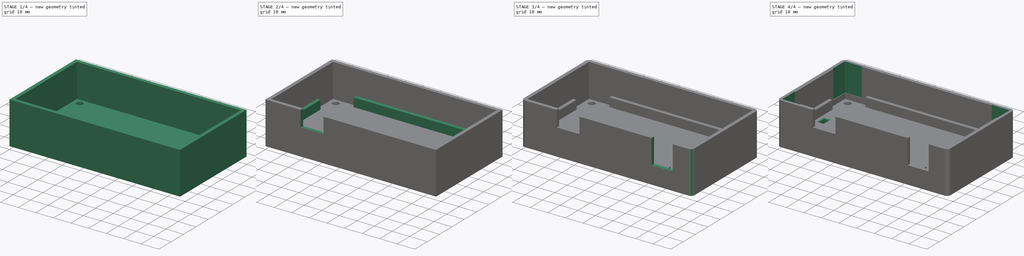
[diagram: build sequence overview — one tinted view per stage of 4, left to right]
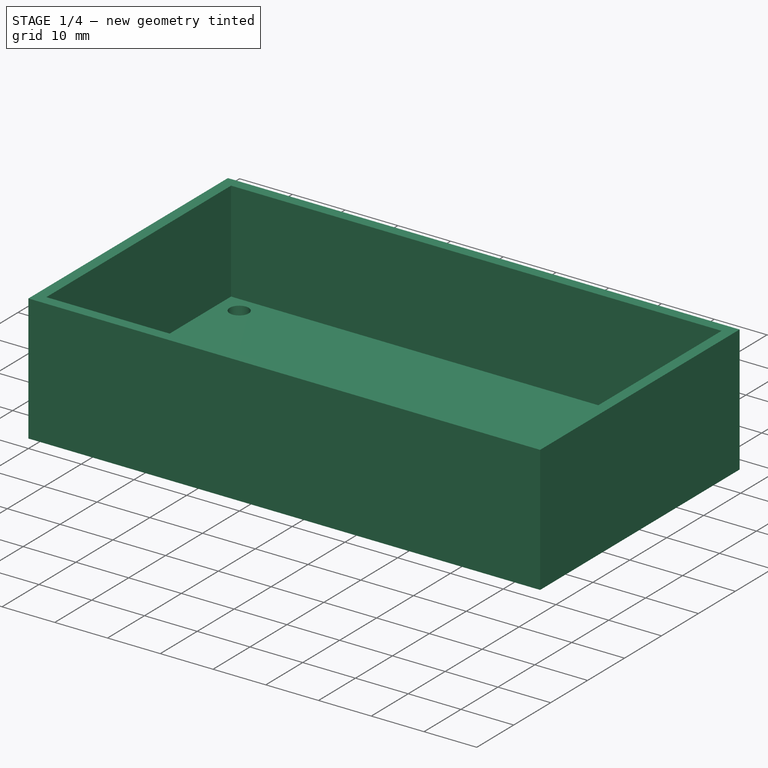
[diagram: stage 1 of 4 — iso view after this stage's code; geometry added in this stage tinted green]
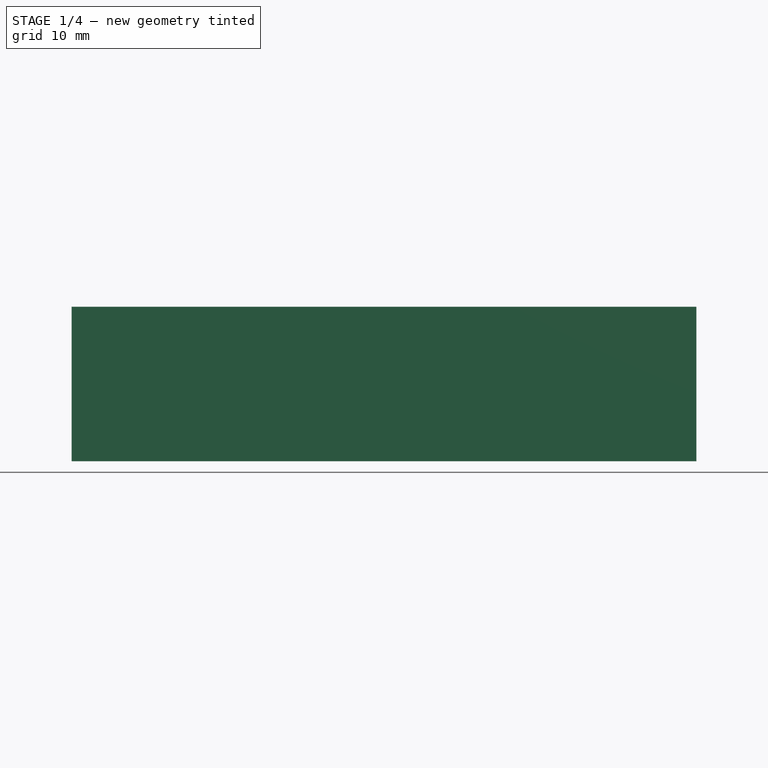
[diagram: stage 1 of 4 — front view after this stage's code; geometry added in this stage tinted green]
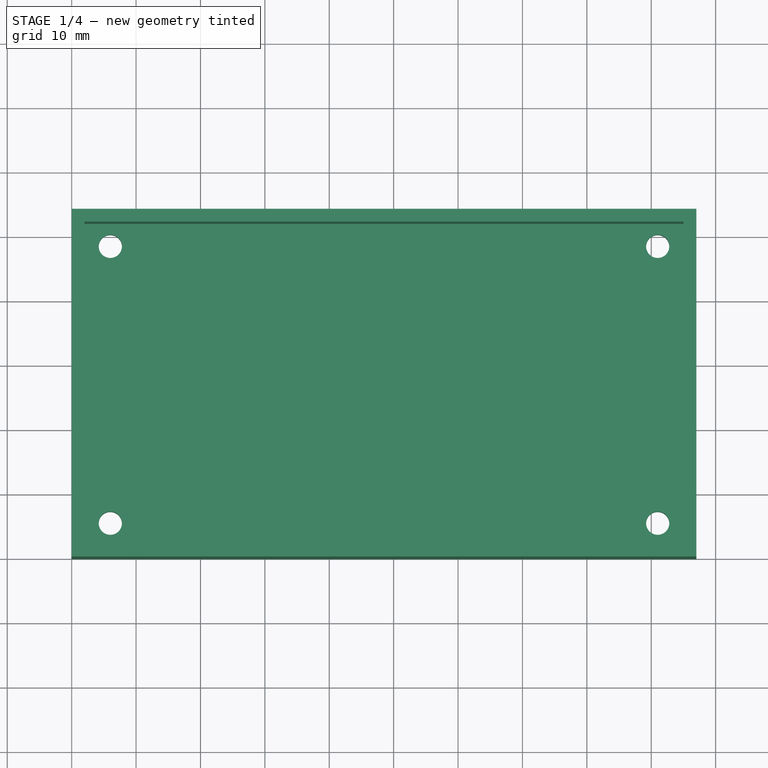
[diagram: stage 1 of 4 — top view after this stage's code; geometry added in this stage tinted green]
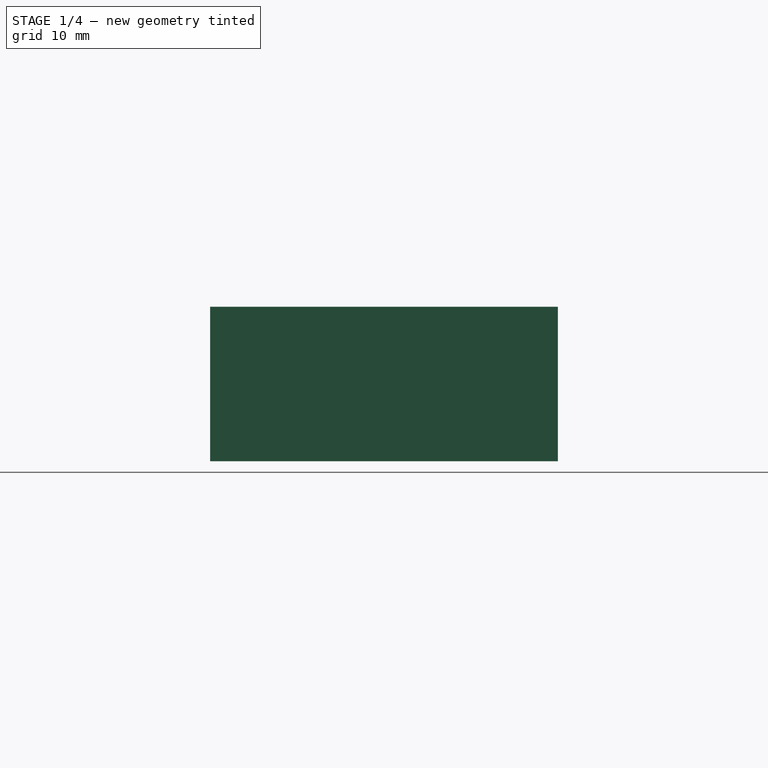
[diagram: stage 1 of 4 — right view after this stage's code; geometry added in this stage tinted green]
FCSTD DOCUMENT  (FreeCAD 0.16R6706 (Git))
Label: Caja_inferior
License: All rights reserved
LicenseURL: http://en.wikipedia.org/wiki/All_rights_reserved
objects: Sketcher::SketchObject×9, PartDesign::Pocket×7, PartDesign::Pad×2, PartDesign::Fillet×2
note: 29 computed .brp shape members not serialized (recipe doc carries the construction recipe); baked Part::Feature solids carry a one-line shape summary decoded from their .brp

FEATURE [Sketcher::SketchObject] Sketch
  sketch-geometry (4):
    g0: LineSegment StartX=0 StartY=0 StartZ=0 EndX=97 EndY=0 EndZ=0
    g1: LineSegment StartX=97 StartY=0 StartZ=0 EndX=97 EndY=54 EndZ=0
    g2: LineSegment StartX=97 StartY=54 StartZ=0 EndX=0 EndY=54 EndZ=0
    g3: LineSegment StartX=0 StartY=54 StartZ=0 EndX=0 EndY=0 EndZ=0
  constraints (11):
    c: Coincident(g0,g1)
    c: Coincident(g1,g2)
    c: Coincident(g2,g3)
    c: Coincident(g3,g0)
    c: Horizontal(g0)
    c: Horizontal(g2)
    c: Vertical(g1)
    c: Vertical(g3)
    c: Coincident(g0,g-1)
    c: DistanceX(g2,g2) = 97
    c: DistanceY(g1,g1) = 54
FEATURE [PartDesign::Pad] Pad  label="Bloque"
  Length = 24
  Length2 = 100
  Sketch = -> Sketch
  Type = 0
FEATURE [Sketcher::SketchObject] Sketch001
  Placement = pos=(0,0,24) rot=(0,0,1;0rad)
  Support = -> Pad [Face6]
  sketch-geometry (4):
    g0: LineSegment StartX=2 StartY=52 StartZ=0 EndX=95 EndY=52 EndZ=0
    g1: LineSegment StartX=95 StartY=52 StartZ=0 EndX=95 EndY=2 EndZ=0
    g2: LineSegment StartX=95 StartY=2 StartZ=0 EndX=2 EndY=2 EndZ=0
    g3: LineSegment StartX=2 StartY=2 StartZ=0 EndX=2 EndY=52 EndZ=0
  constraints (12):
    c: Coincident(g0,g1)
    c: Coincident(g1,g2)
    c: Coincident(g2,g3)
    c: Coincident(g3,g0)
    c: Horizontal(g0)
    c: Horizontal(g2)
    c: Vertical(g1)
    c: Vertical(g3)
    c: DistanceX(g-1,g2) = 2
    c: DistanceY(g-1,g2) = 2
    c: DistanceY(g1,g1) = 50
    c: DistanceX(g0,g0) = 93
FEATURE [PartDesign::Pocket] Pocket  label="Vaciado_general"
  Length = 19
  Sketch = -> Sketch001
  Type = 0
FEATURE [Sketcher::SketchObject] Sketch002
  Placement = pos=(0,0,0) rot=(1,0,0;3.14159rad)
  Support = -> Pocket [Face4]
  sketch-geometry (4):
    g0: Circle CenterX=6 CenterY=-5.5 CenterZ=0 NormalX=0 NormalY=0 NormalZ=1 Radius=1.8
    g1: Circle CenterX=91 CenterY=-5.5 CenterZ=0 NormalX=0 NormalY=0 NormalZ=1 Radius=1.8
    g2: Circle CenterX=91 CenterY=-48.5 CenterZ=0 NormalX=0 NormalY=0 NormalZ=1 Radius=1.8
    g3: Circle CenterX=6 CenterY=-48.5 CenterZ=0 NormalX=0 NormalY=0 NormalZ=1 Radius=1.8
  constraints (12):
    c: DistanceX(g-1,g0) = 6
    c: DistanceY(g0,g-1) = 5.5
    c: Radius(g0) = 1.8
    c: DistanceX(g-1,g1) = 91
    c: DistanceY(g0,g1) = 0
    c: Radius(g1) = 1.8
    c: DistanceX(g2,g1) = 0
    c: DistanceY(g2,g1) = 43
    c: Radius(g2) = 1.8
    c: DistanceY(g2,g3) = 0
    c: DistanceX(g0,g3) = 0
    c: Radius(g3) = 1.8
FEATURE [PartDesign::Pocket] Pocket001  label="Taladros"
  Length = 5
  Sketch = -> Sketch002
  Type = 1
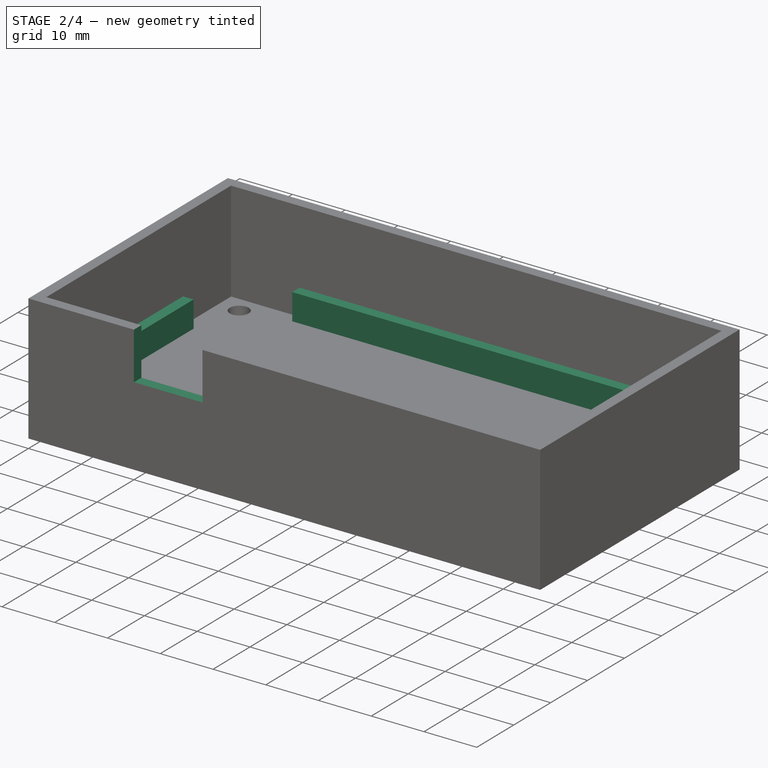
[diagram: stage 2 of 4 — iso view after this stage's code; geometry added in this stage tinted green]
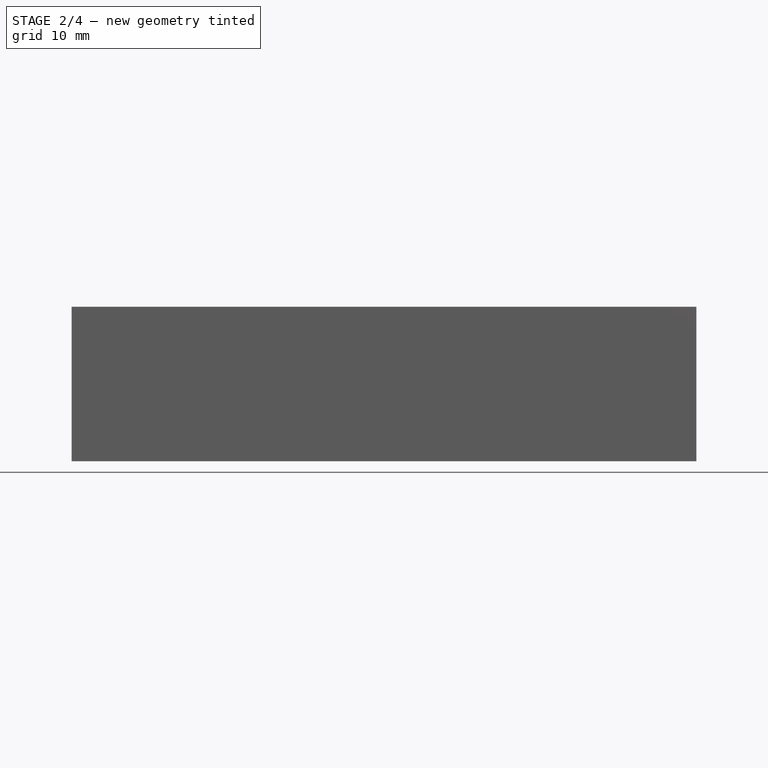
[diagram: stage 2 of 4 — front view after this stage's code; geometry added in this stage tinted green]
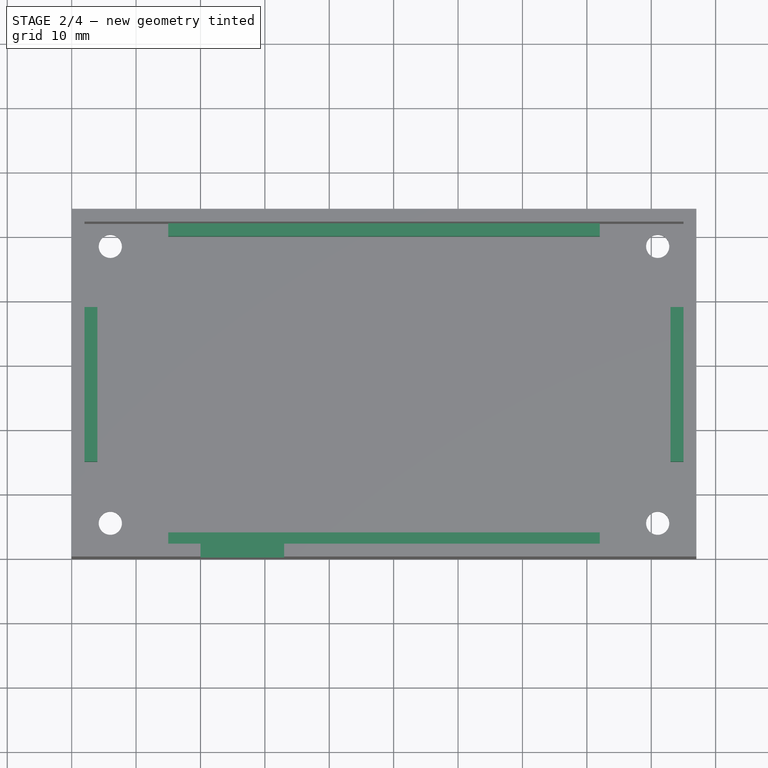
[diagram: stage 2 of 4 — top view after this stage's code; geometry added in this stage tinted green]
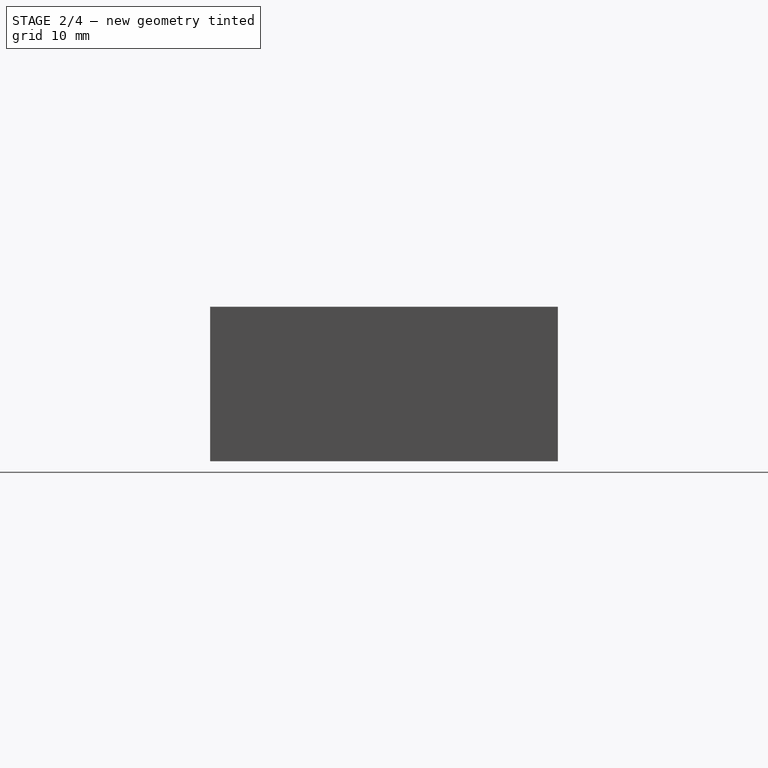
[diagram: stage 2 of 4 — right view after this stage's code; geometry added in this stage tinted green]
FEATURE [Sketcher::SketchObject] Sketch003
  Placement = pos=(0,0,0) rot=(1,0,0;3.14159rad)
  Support = -> Pocket001 [Face4]
  sketch-geometry (4):
    g0: Circle CenterX=6 CenterY=-5.5 CenterZ=0 NormalX=0 NormalY=0 NormalZ=1 Radius=3.2
    g1: Circle CenterX=6 CenterY=-48.5 CenterZ=0 NormalX=0 NormalY=0 NormalZ=1 Radius=3.2
    g2: Circle CenterX=91 CenterY=-5.5 CenterZ=0 NormalX=0 NormalY=0 NormalZ=1 Radius=3.2
    g3: Circle CenterX=91 CenterY=-48.5 CenterZ=0 NormalX=0 NormalY=0 NormalZ=1 Radius=3.2
  constraints (12):
    c: DistanceX(g0) = 6
    c: DistanceY(g0,g-1) = 5.5
    c: Radius(g0) = 3.2
    c: DistanceY(g1,g-1) = 48.5
    c: DistanceX(g0,g1) = 0
    c: Radius(g1) = 3.2
    c: DistanceX(g-1,g2) = 91
    c: DistanceY(g2,g0) = 0
    c: Radius(g2) = 3.2
    c: DistanceY(g1,g3) = 0
    c: DistanceX(g3,g2) = 0
    c: Radius(g3) = 3.2
FEATURE [PartDesign::Pocket] Pocket002  label="Cabeza_tornillos"
  Length = 3
  Sketch = -> Sketch003
  Type = 0
FEATURE [Sketcher::SketchObject] Sketch004
  Placement = pos=(0,0,5) rot=(0,0,1;0rad)
  Support = -> Pocket002 [Face19]
  sketch-geometry (16):
    g0: LineSegment StartX=15 StartY=4 StartZ=0 EndX=82 EndY=4 EndZ=0
    g1: LineSegment StartX=82 StartY=4 StartZ=0 EndX=82 EndY=2 EndZ=0
    g2: LineSegment StartX=82 StartY=2 StartZ=0 EndX=15 EndY=2 EndZ=0
    g3: LineSegment StartX=15 StartY=2 StartZ=0 EndX=15 EndY=4 EndZ=0
    g4: LineSegment StartX=15 StartY=52 StartZ=0 EndX=82 EndY=52 EndZ=0
    g5: LineSegment StartX=82 StartY=52 StartZ=0 EndX=82 EndY=50 EndZ=0
    g6: LineSegment StartX=82 StartY=50 StartZ=0 EndX=15 EndY=50 EndZ=0
    g7: LineSegment StartX=15 StartY=50 StartZ=0 EndX=15 EndY=52 EndZ=0
    g8: LineSegment StartX=2 StartY=39 StartZ=0 EndX=4 EndY=39 EndZ=0
    g9: LineSegment StartX=4 StartY=39 StartZ=0 EndX=4 EndY=15 EndZ=0
    g10: LineSegment StartX=4 StartY=15 StartZ=0 EndX=2 EndY=15 EndZ=0
    g11: LineSegment StartX=2 StartY=15 StartZ=0 EndX=2 EndY=39 EndZ=0
    g12: LineSegment StartX=93 StartY=39 StartZ=0 EndX=95 EndY=39 EndZ=0
    g13: LineSegment StartX=95 StartY=39 StartZ=0 EndX=95 EndY=15 EndZ=0
    g14: LineSegment StartX=95 StartY=15 StartZ=0 EndX=93 EndY=15 EndZ=0
    g15: LineSegment StartX=93 StartY=15 StartZ=0 EndX=93 EndY=39 EndZ=0
  constraints (48):
    c: Coincident(g0,g1)
    c: Coincident(g1,g2)
    c: Coincident(g2,g3)
    c: Coincident(g3,g0)
    c: Horizontal(g0)
    c: Horizontal(g2)
    c: Vertical(g1)
    c: Vertical(g3)
    c: DistanceY(g1,g1) = 2
    c: DistanceX(g-1,g2) = 15
    c: DistanceX(g0,g0) = 67
    c: DistanceY(g-1,g2) = 2
    c: Coincident(g4,g5)
    c: Coincident(g5,g6)
    c: Coincident(g6,g7)
    c: Coincident(g7,g4)
    c: Horizontal(g4)
    c: Horizontal(g6)
    c: Vertical(g5)
    c: Vertical(g7)
    c: DistanceY(g5,g5) = 2
    c: DistanceX(g-1,g6) = 15
    c: DistanceX(g6,g6) = 67
    c: DistanceY(g-1,g4) = 52
    c: Coincident(g8,g9)
    c: Coincident(g9,g10)
    c: Coincident(g10,g11)
    c: Coincident(g11,g8)
    c: Horizontal(g8)
    c: Horizontal(g10)
    c: Vertical(g9)
    c: Vertical(g11)
    c: DistanceX(g8,g8) = 2
    c: DistanceY(g-1,g10) = 15
    c: DistanceY(g11,g11) = 24
    c: DistanceX(g-1,g10) = 2
    c: Coincident(g12,g13)
    c: Coincident(g13,g14)
    c: Coincident(g14,g15)
    c: Coincident(g15,g12)
    c: Horizontal(g12)
    c: Horizontal(g14)
    c: Vertical(g13)
    c: Vertical(g15)
    c: DistanceX(g12,g12) = 2
    c: DistanceY(g13,g13) = 24
    c: DistanceY(g-1,g14) = 15
    c: DistanceX(g-1,g13) = 95
FEATURE [PartDesign::Pad] Pad001  label="Soporte_placa_circuito"
  Length = 5
  Length2 = 100
  Sketch = -> Sketch004
  Type = 0
FEATURE [Sketcher::SketchObject] Sketch005
  Placement = pos=(0,0,0) rot=(1,0,0;1.5708rad)
  Support = -> Pad001 [Face1]
  sketch-geometry (4):
    g0: LineSegment StartX=20 StartY=24 StartZ=0 EndX=33 EndY=24 EndZ=0
    g1: LineSegment StartX=33 StartY=24 StartZ=0 EndX=33 EndY=15 EndZ=0
    g2: LineSegment StartX=33 StartY=15 StartZ=0 EndX=20 EndY=15 EndZ=0
    g3: LineSegment StartX=20 StartY=15 StartZ=0 EndX=20 EndY=24 EndZ=0
  constraints (12):
    c: Coincident(g0,g1)
    c: Coincident(g1,g2)
    c: Coincident(g2,g3)
    c: Coincident(g3,g0)
    c: Horizontal(g0)
    c: Horizontal(g2)
    c: Vertical(g1)
    c: Vertical(g3)
    c: DistanceX(g0,g0) = 13
    c: DistanceY(g1,g1) = 9
    c: DistanceY(g-1,g0) = 24
    c: DistanceX(g-1,g2) = 20
FEATURE [PartDesign::Pocket] Pocket003  label="Interruptor"
  Length = 5
  Sketch = -> Sketch005
  Type = 2
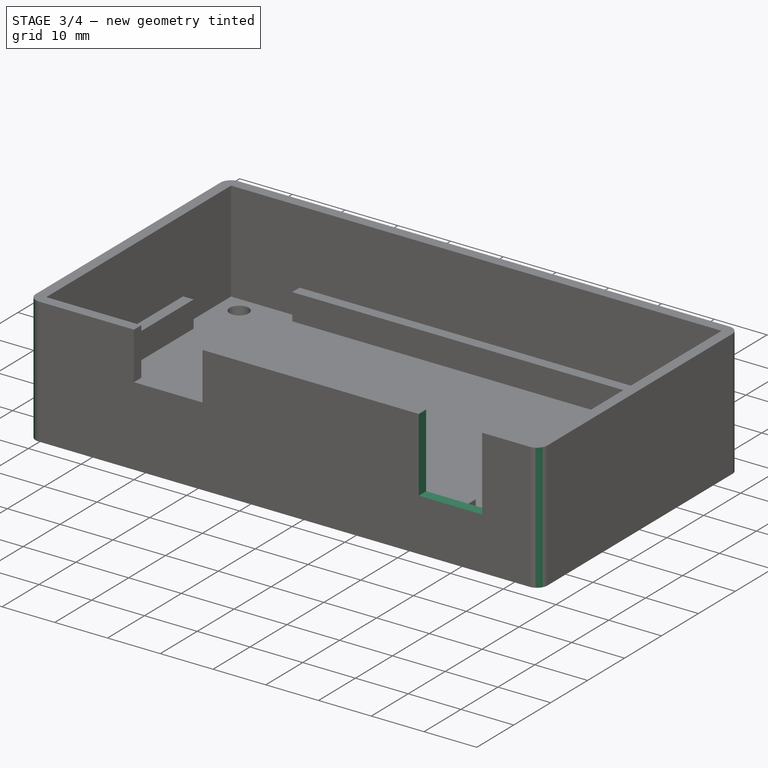
[diagram: stage 3 of 4 — iso view after this stage's code; geometry added in this stage tinted green]
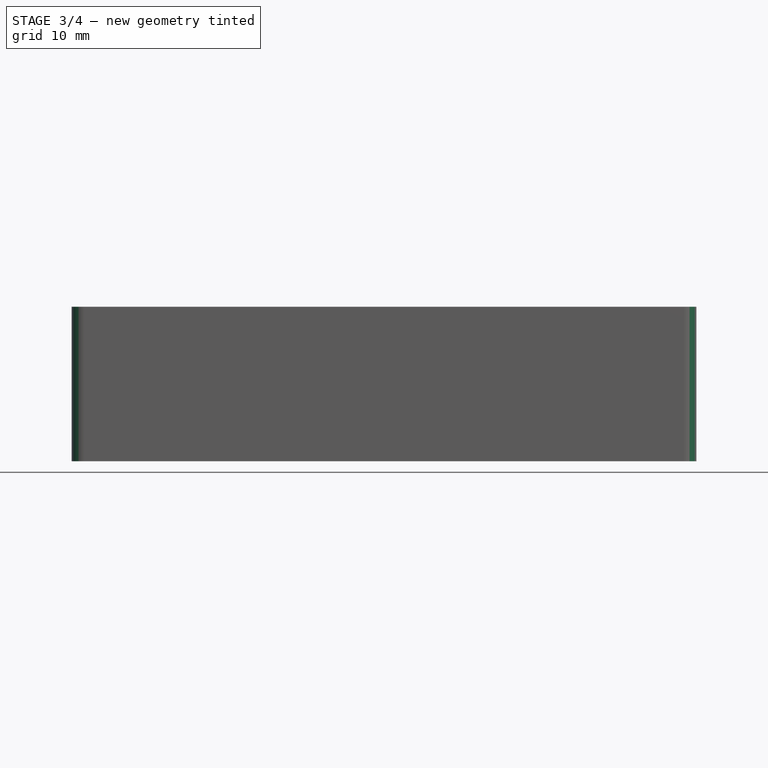
[diagram: stage 3 of 4 — front view after this stage's code; geometry added in this stage tinted green]
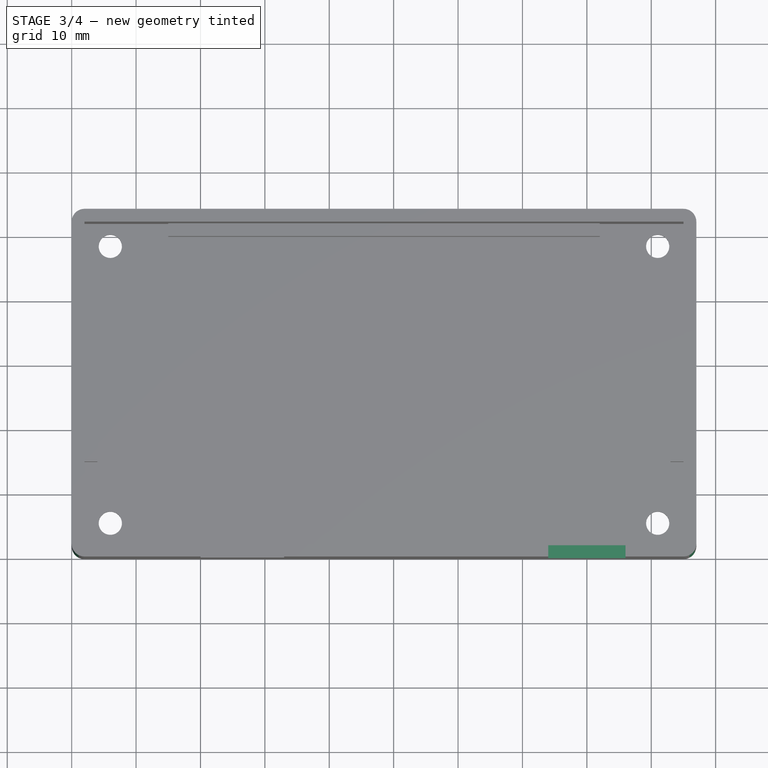
[diagram: stage 3 of 4 — top view after this stage's code; geometry added in this stage tinted green]
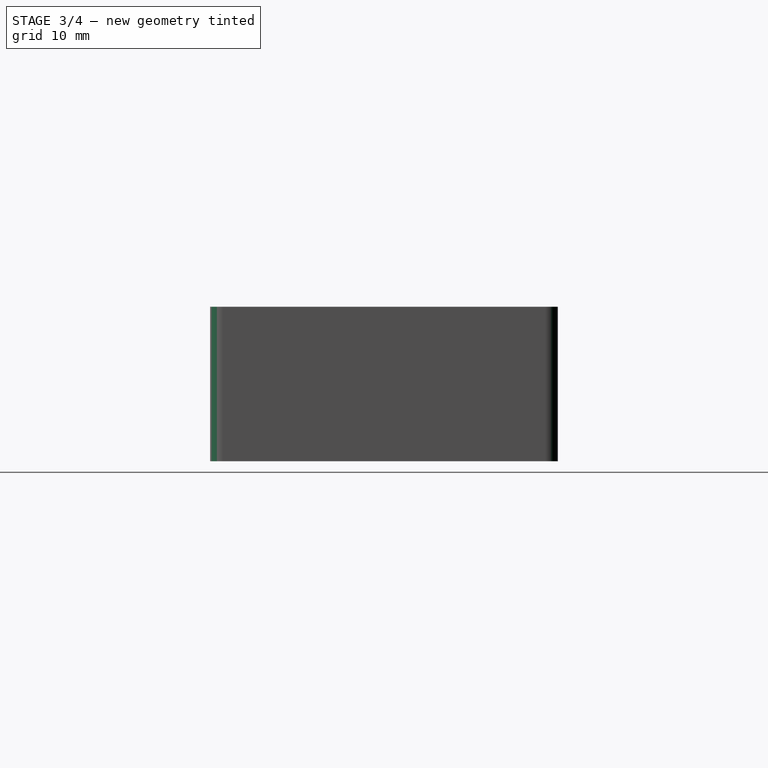
[diagram: stage 3 of 4 — right view after this stage's code; geometry added in this stage tinted green]
FEATURE [Sketcher::SketchObject] Sketch006
  Placement = pos=(0,0,0) rot=(1,0,0;1.5708rad)
  Support = -> Pocket003 [Face1]
  sketch-geometry (4):
    g0: LineSegment StartX=74 StartY=24 StartZ=0 EndX=86 EndY=24 EndZ=0
    g1: LineSegment StartX=86 StartY=24 StartZ=0 EndX=86 EndY=10 EndZ=0
    g2: LineSegment StartX=86 StartY=10 StartZ=0 EndX=74 EndY=10 EndZ=0
    g3: LineSegment StartX=74 StartY=10 StartZ=0 EndX=74 EndY=24 EndZ=0
  constraints (12):
    c: Coincident(g0,g1)
    c: Coincident(g1,g2)
    c: Coincident(g2,g3)
    c: Coincident(g3,g0)
    c: Horizontal(g0)
    c: Horizontal(g2)
    c: Vertical(g1)
    c: Vertical(g3)
    c: DistanceX(g0,g0) = 12
    c: DistanceY(g1,g1) = 14
    c: DistanceY(g-1,g0) = 24
    c: DistanceX(g-1,g2) = 74
FEATURE [PartDesign::Pocket] Pocket004  label="Conector_motor"
  Length = 5
  Sketch = -> Sketch006
  Type = 2
FEATURE [PartDesign::Fillet] Fillet
  Base = -> Pocket004 [Edge2,Edge12,Edge20,Edge45]
  Radius = 2
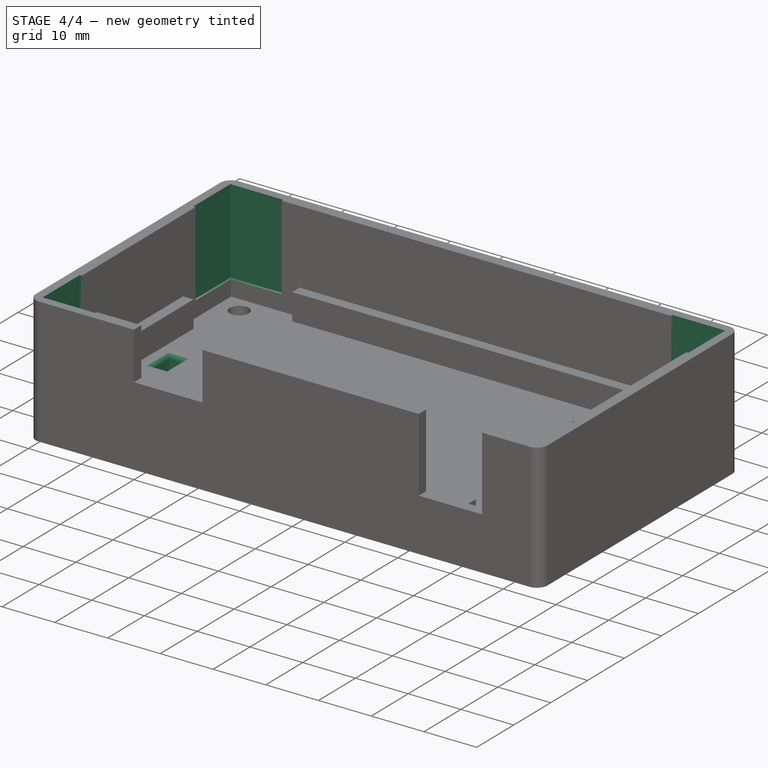
[diagram: stage 4 of 4 — iso view after this stage's code; geometry added in this stage tinted green]
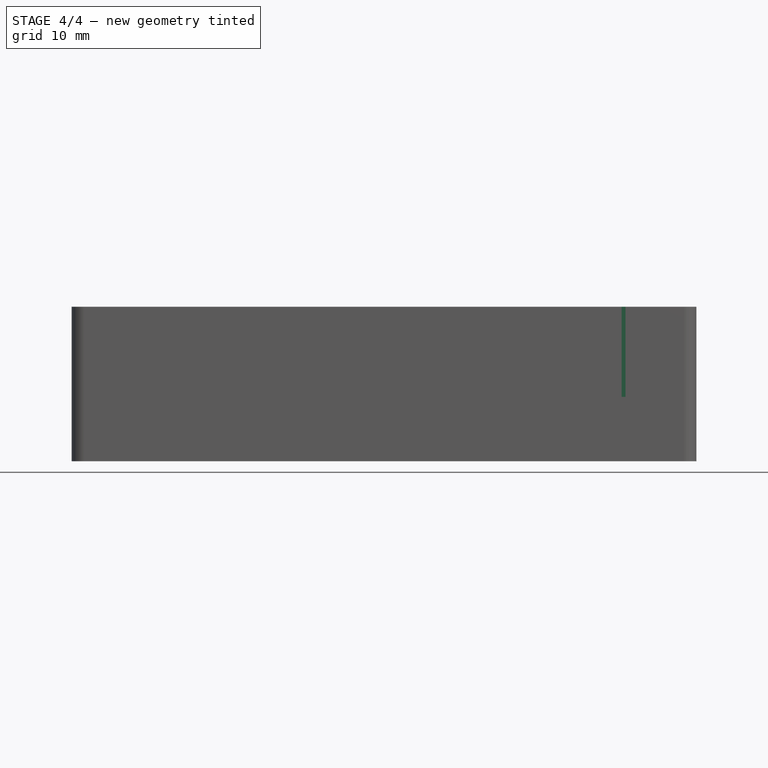
[diagram: stage 4 of 4 — front view after this stage's code; geometry added in this stage tinted green]
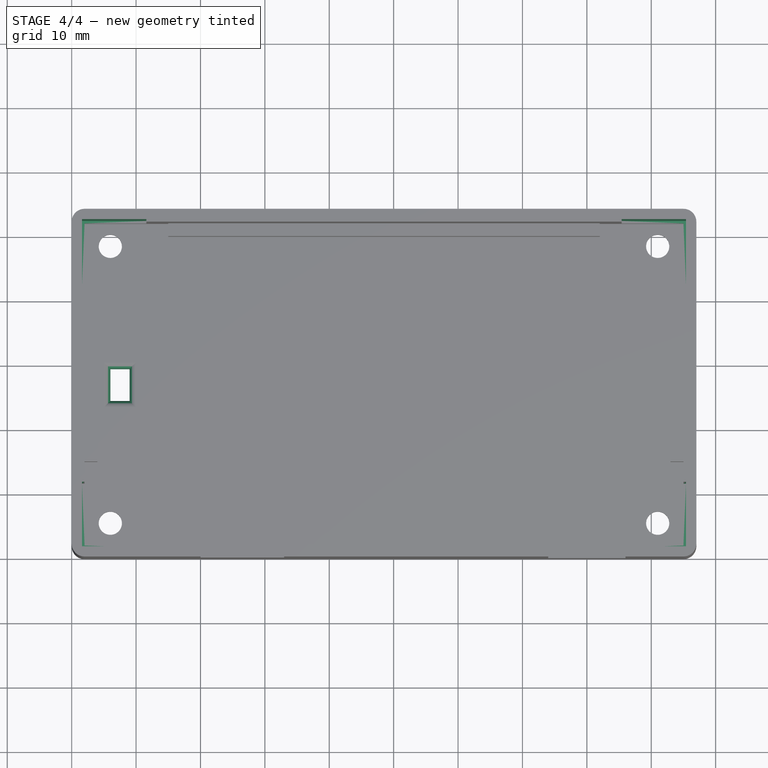
[diagram: stage 4 of 4 — top view after this stage's code; geometry added in this stage tinted green]
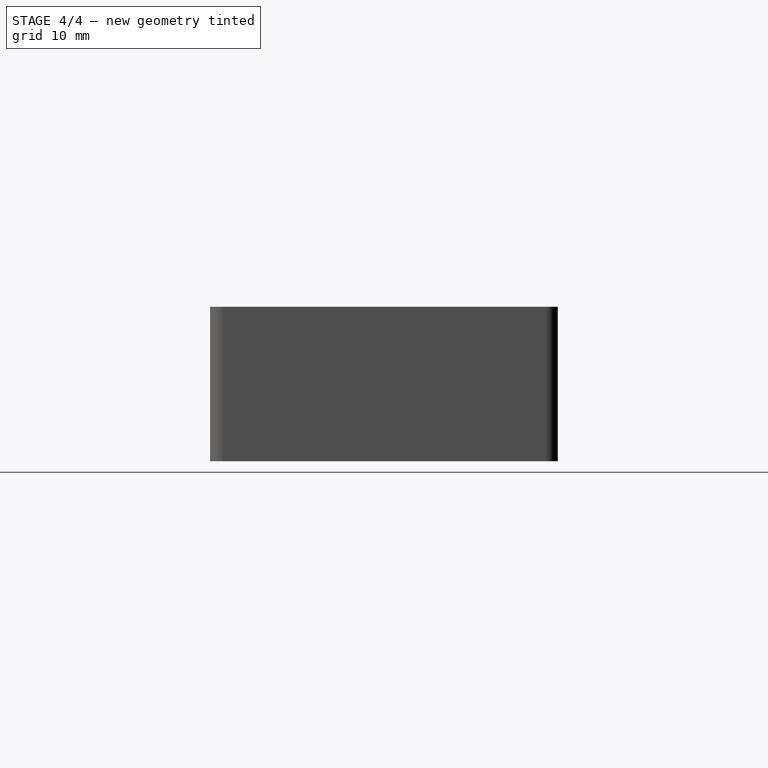
[diagram: stage 4 of 4 — right view after this stage's code; geometry added in this stage tinted green]
FEATURE [Sketcher::SketchObject] Sketch007
  Placement = pos=(0,0,24) rot=(0,0,1;0rad)
  Support = -> Fillet [Face5]
  sketch-geometry (16):
    g0: LineSegment StartX=1.6 StartY=11.6 StartZ=0 EndX=11.6 EndY=11.6 EndZ=0
    g1: LineSegment StartX=11.6 StartY=11.6 StartZ=0 EndX=11.6 EndY=1.6 EndZ=0
    g2: LineSegment StartX=11.6 StartY=1.6 StartZ=0 EndX=1.6 EndY=1.6 EndZ=0
    g3: LineSegment StartX=1.6 StartY=1.6 StartZ=0 EndX=1.6 EndY=11.6 EndZ=0
    g4: LineSegment StartX=1.6 StartY=52.4 StartZ=0 EndX=11.6 EndY=52.4 EndZ=0
    g5: LineSegment StartX=11.6 StartY=52.4 StartZ=0 EndX=11.6 EndY=42.4 EndZ=0
    g6: LineSegment StartX=11.6 StartY=42.4 StartZ=0 EndX=1.6 EndY=42.4 EndZ=0
    g7: LineSegment StartX=1.6 StartY=42.4 StartZ=0 EndX=1.6 EndY=52.4 EndZ=0
    g8: LineSegment StartX=85.4 StartY=11.6 StartZ=0 EndX=95.4 EndY=11.6 EndZ=0
    g9: LineSegment StartX=95.4 StartY=11.6 StartZ=0 EndX=95.4 EndY=1.6 EndZ=0
    g10: LineSegment StartX=95.4 StartY=1.6 StartZ=0 EndX=85.4 EndY=1.6 EndZ=0
    g11: LineSegment StartX=85.4 StartY=1.6 StartZ=0 EndX=85.4 EndY=11.6 EndZ=0
    g12: LineSegment StartX=85.4 StartY=52.4 StartZ=0 EndX=95.4 EndY=52.4 EndZ=0
    g13: LineSegment StartX=95.4 StartY=52.4 StartZ=0 EndX=95.4 EndY=42.4 EndZ=0
    g14: LineSegment StartX=95.4 StartY=42.4 StartZ=0 EndX=85.4 EndY=42.4 EndZ=0
    g15: LineSegment StartX=85.4 StartY=42.4 StartZ=0 EndX=85.4 EndY=52.4 EndZ=0
  constraints (48):
    c: Coincident(g0,g1)
    c: Coincident(g1,g2)
    c: Coincident(g2,g3)
    c: Coincident(g3,g0)
    c: Horizontal(g0)
    c: Horizontal(g2)
    c: Vertical(g1)
    c: Vertical(g3)
    c: DistanceX(g-1,g2) = 1.6
    c: DistanceY(g-1,g2) = 1.6
    c: Coincident(g4,g5)
    c: Coincident(g5,g6)
    c: Coincident(g6,g7)
    c: Coincident(g7,g4)
    c: Horizontal(g4)
    c: Horizontal(g6)
    c: Vertical(g5)
    c: Vertical(g7)
    c: DistanceX(g2,g6) = 0
    c: DistanceY(g-1,g4) = 52.4
    c: Coincident(g8,g9)
    c: Coincident(g9,g10)
    c: Coincident(g10,g11)
    c: Coincident(g11,g8)
    c: Horizontal(g8)
    c: Horizontal(g10)
    c: Vertical(g9)
    c: Vertical(g11)
    c: DistanceY(g1,g10) = 0
    c: DistanceX(g-1,g9) = 95.4
    c: Coincident(g12,g13)
    c: Coincident(g13,g14)
    c: Coincident(g14,g15)
    c: Coincident(g15,g12)
    c: Horizontal(g12)
    c: Horizontal(g14)
    c: Vertical(g13)
    c: Vertical(g15)
    c: DistanceX(g13,g8) = 0
    c: DistanceY(g12,g4) = 0
    c: DistanceX(g6,g6) = 10
    c: DistanceY(g5,g5) = 10
    c: DistanceX(g14,g14) = 10
    c: DistanceY(g15,g15) = 10
    c: DistanceX(g8,g8) = 10
    c: DistanceY(g11,g11) = 10
    c: DistanceX(g0,g0) = 10
    c: DistanceY(g1,g1) = 10
FEATURE [PartDesign::Pocket] Pocket005  label="Toleracia_torres"
  Length = 16
  Sketch = -> Sketch007
  Type = 0
FEATURE [Sketcher::SketchObject] Sketch008
  Placement = pos=(0,0,5) rot=(0,0,1;0rad)
  Support = -> Pocket005 [Face49]
  sketch-geometry (4):
    g0: LineSegment StartX=6 StartY=29.5 StartZ=0 EndX=9 EndY=29.5 EndZ=0
    g1: LineSegment StartX=9 StartY=29.5 StartZ=0 EndX=9 EndY=24.5 EndZ=0
    g2: LineSegment StartX=9 StartY=24.5 StartZ=0 EndX=6 EndY=24.5 EndZ=0
    g3: LineSegment StartX=6 StartY=24.5 StartZ=0 EndX=6 EndY=29.5 EndZ=0
  constraints (12):
    c: Coincident(g0,g1)
    c: Coincident(g1,g2)
    c: Coincident(g2,g3)
    c: Coincident(g3,g0)
    c: Horizontal(g0)
    c: Horizontal(g2)
    c: Vertical(g1)
    c: Vertical(g3)
    c: DistanceY(g3,g3) = 5
    c: DistanceX(g0,g0) = 3
    c: DistanceX(g-1,g2) = 6
    c: DistanceY(g-1,g2) = 24.5
FEATURE [PartDesign::Pocket] Pocket006  label="Pasacables"
  Length = 5
  Sketch = -> Sketch008
  Type = 1
FEATURE [PartDesign::Fillet] Fillet001
  Base = -> Pocket006 [Edge85,Edge80,Edge87,Edge83]
  Radius = 1
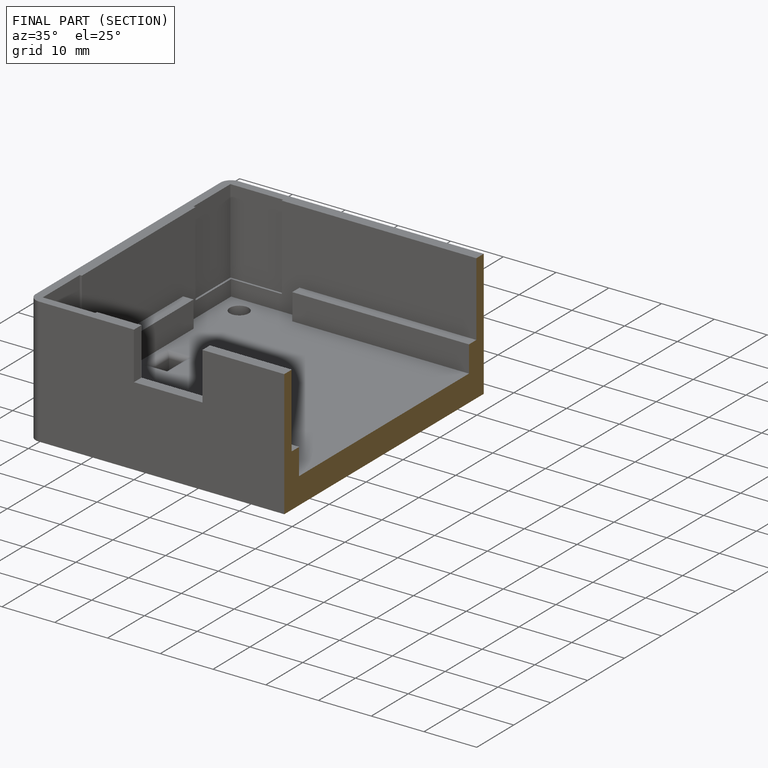
[diagram: finished part — half-section view (interior)]
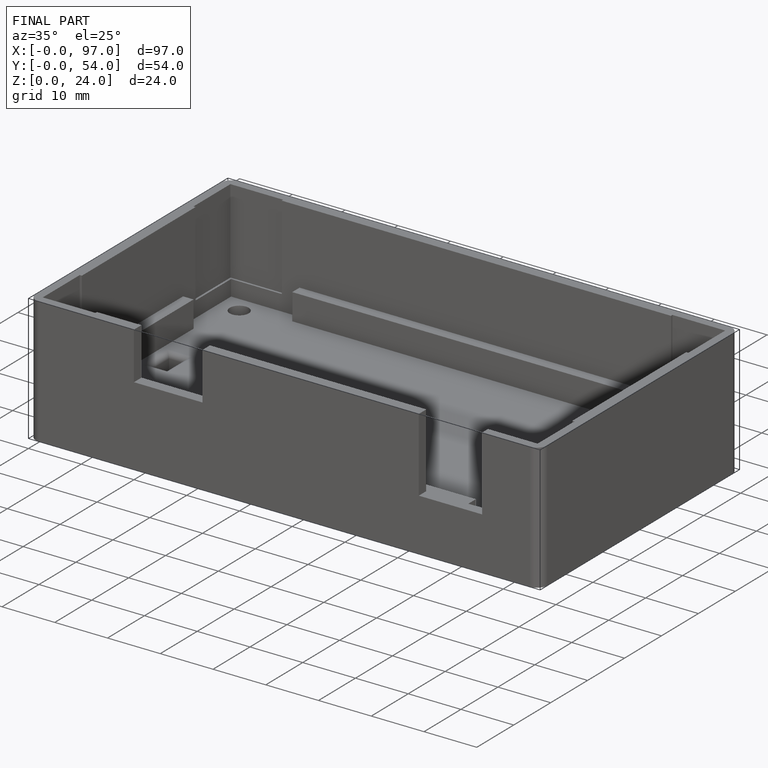
[diagram: finished part — iso view with bounding-box wireframe]
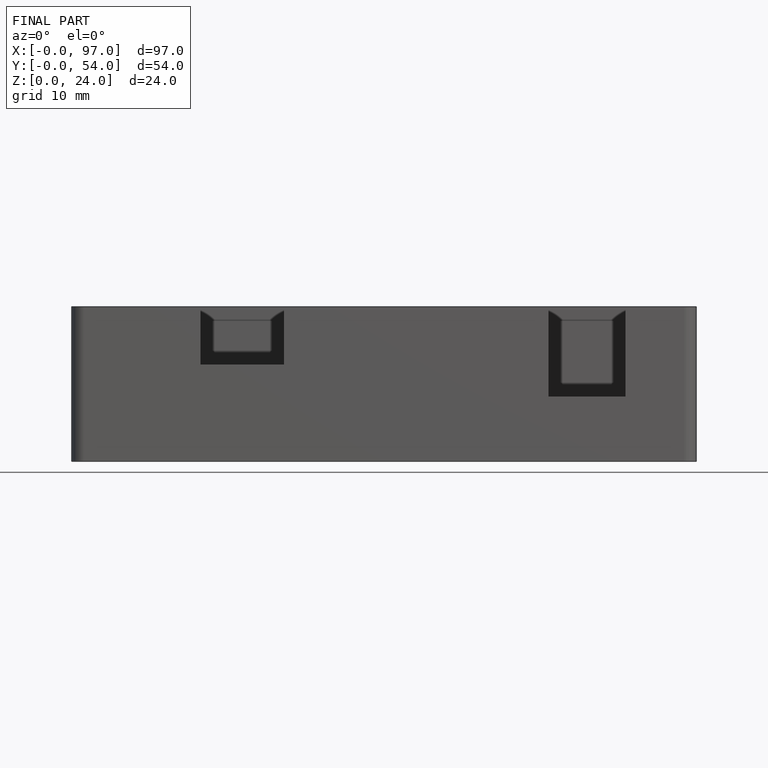
[diagram: finished part — front view with bounding-box wireframe]
